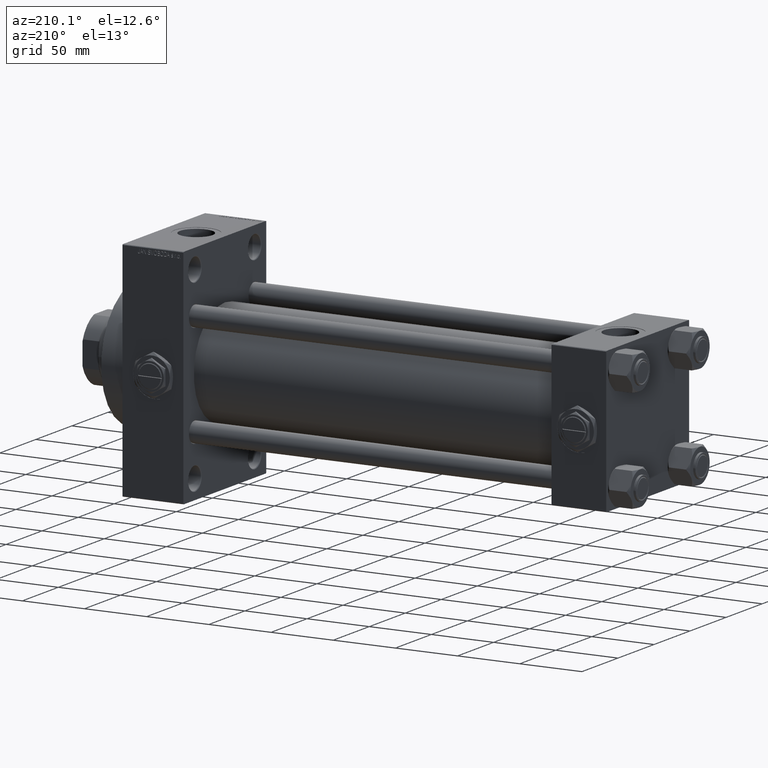
[diagram: clean part render]
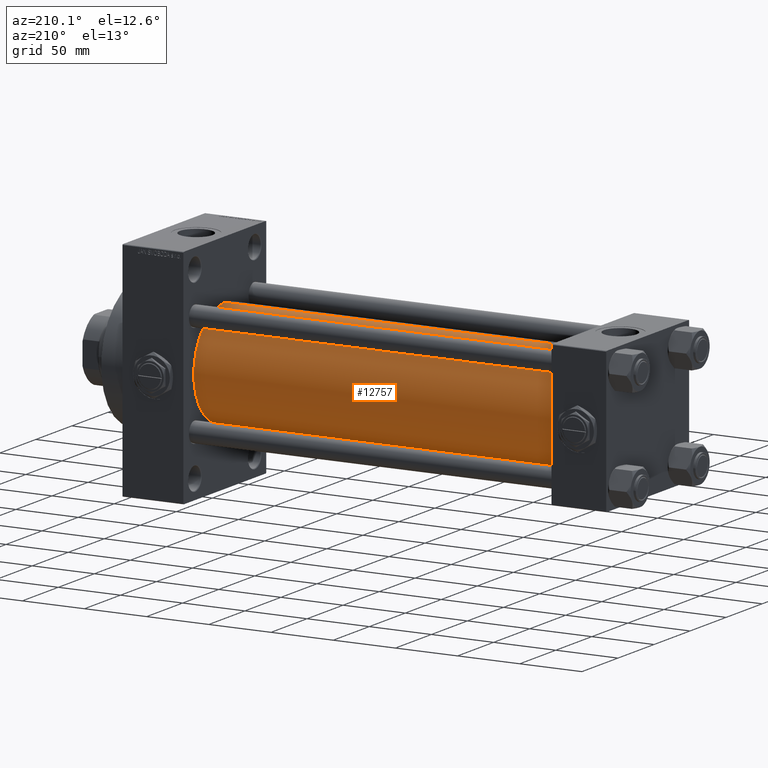
[diagram: same view with one face highlighted and labeled with its STEP entity id]
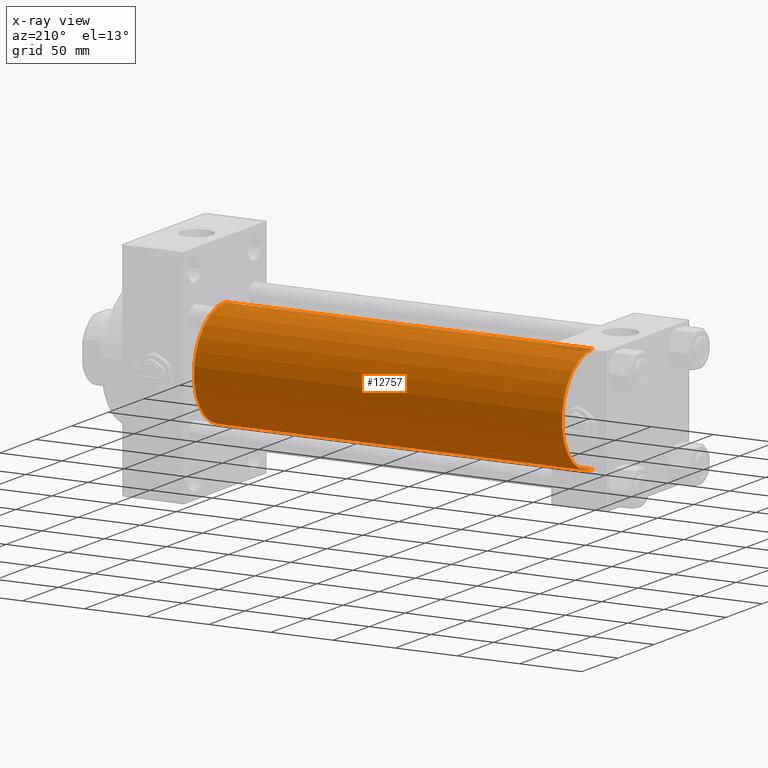
[diagram: x-ray of the same camera — body ghosted, the highlighted face saturated]
A machine part, auxiliary view. The second image highlights one B-rep face of the part: STEP entity #12757.
The next image is the same camera in x-ray: the body ghosted, the highlighted face saturated — about 0% of this face is hidden behind the body in this view.
In plain terms, the highlighted cylindrical surface (partial cylindrical patch) has radius 43 mm, axis along (-1, -0, -0).
Its self-contained STEP definition (entity closure, byte-faithful):
#1017 = DIRECTION ( 'NONE',  ( 1.000000000000000000, -0.000000000000000000, 0.000000000000000000 ) ) ;
#1595 = DIRECTION ( 'NONE',  ( 0.000000000000000000, 0.000000000000000000, 1.000000000000000000 ) ) ;
#1602 = DIRECTION ( 'NONE',  ( 1.000000000000000000, 0.000000000000000000, 0.000000000000000000 ) ) ;
#2804 = VECTOR ( 'NONE', #49672, 1000.000000000000000 ) ;
#4025 = VERTEX_POINT ( 'NONE', #11311 ) ;
#4382 = CARTESIAN_POINT ( 'NONE',  ( 339.9999999999999432, -2.602085213965210642E-15, 0.000000000000000000 ) ) ;
#5859 = CIRCLE ( 'NONE', #48508, 43.00000000000000000 ) ;
#7140 = VERTEX_POINT ( 'NONE', #24094 ) ;
#7789 = EDGE_LOOP ( 'NONE', ( #28780, #18020, #19539, #35351 ) ) ;
#8075 = CARTESIAN_POINT ( 'NONE',  ( 339.9999999999999432, 2.663896022368408223E-15, -43.00000000000000000 ) ) ;
#9025 = CARTESIAN_POINT ( 'NONE',  ( 339.9999999999999432, -2.602085213965210642E-15, 43.00000000000000000 ) ) ;
#9472 = EDGE_CURVE ( 'NONE', #7140, #4025, #42572, .T. ) ;
#11311 = CARTESIAN_POINT ( 'NONE',  ( 43.99999999999998579, 2.663896022368408223E-15, -43.00000000000000000 ) ) ;
#12674 = DIRECTION ( 'NONE',  ( 0.000000000000000000, 0.000000000000000000, -1.000000000000000000 ) ) ;
#12757 = ADVANCED_FACE ( 'NONE', ( #20209 ), #39850, .T. ) ;
#14332 = CARTESIAN_POINT ( 'NONE',  ( 339.9999999999999432, -2.602085213965210642E-15, 0.000000000000000000 ) ) ;
#15840 = LINE ( 'NONE', #9025, #2804 ) ;
#18020 = ORIENTED_EDGE ( 'NONE', *, *, #9472, .T. ) ;
#19432 = VERTEX_POINT ( 'NONE', #23718 ) ;
#19539 = ORIENTED_EDGE ( 'NONE', *, *, #44081, .T. ) ;
#20209 = FACE_OUTER_BOUND ( 'NONE', #7789, .T. ) ;
#20375 = DIRECTION ( 'NONE',  ( 0.000000000000000000, 0.000000000000000000, 1.000000000000000000 ) ) ;
#23513 = CIRCLE ( 'NONE', #36368, 43.00000000000000000 ) ;
#23718 = CARTESIAN_POINT ( 'NONE',  ( 339.9999999999999432, -2.602085213965210642E-15, 43.00000000000000000 ) ) ;
#24094 = CARTESIAN_POINT ( 'NONE',  ( 339.9999999999999432, 2.663896022368408223E-15, -43.00000000000000000 ) ) ;
#26858 = CARTESIAN_POINT ( 'NONE',  ( 43.99999999999998579, -2.602085213965210642E-15, 43.00000000000000000 ) ) ;
#28625 = EDGE_CURVE ( 'NONE', #19432, #49555, #15840, .T. ) ;
#28780 = ORIENTED_EDGE ( 'NONE', *, *, #39159, .F. ) ;
#35351 = ORIENTED_EDGE ( 'NONE', *, *, #28625, .F. ) ;
#35484 = CARTESIAN_POINT ( 'NONE',  ( 43.99999999999998579, -2.602085213965210642E-15, 0.000000000000000000 ) ) ;
#36063 = DIRECTION ( 'NONE',  ( -1.000000000000000000, -0.000000000000000000, -0.000000000000000000 ) ) ;
#36368 = AXIS2_PLACEMENT_3D ( 'NONE', #14332, #1602, #12674 ) ;
#39159 = EDGE_CURVE ( 'NONE', #7140, #19432, #23513, .T. ) ;
#39850 = CYLINDRICAL_SURFACE ( 'NONE', #43398, 43.00000000000000000 ) ;
#42572 = LINE ( 'NONE', #8075, #46958 ) ;
#43398 = AXIS2_PLACEMENT_3D ( 'NONE', #4382, #36063, #1595 ) ;
#44081 = EDGE_CURVE ( 'NONE', #4025, #49555, #5859, .T. ) ;
#46602 = DIRECTION ( 'NONE',  ( -1.000000000000000000, -0.000000000000000000, -0.000000000000000000 ) ) ;
#46958 = VECTOR ( 'NONE', #46602, 1000.000000000000000 ) ;
#48508 = AXIS2_PLACEMENT_3D ( 'NONE', #35484, #1017, #20375 ) ;
#49555 = VERTEX_POINT ( 'NONE', #26858 ) ;
#49672 = DIRECTION ( 'NONE',  ( -1.000000000000000000, -0.000000000000000000, -0.000000000000000000 ) ) ;